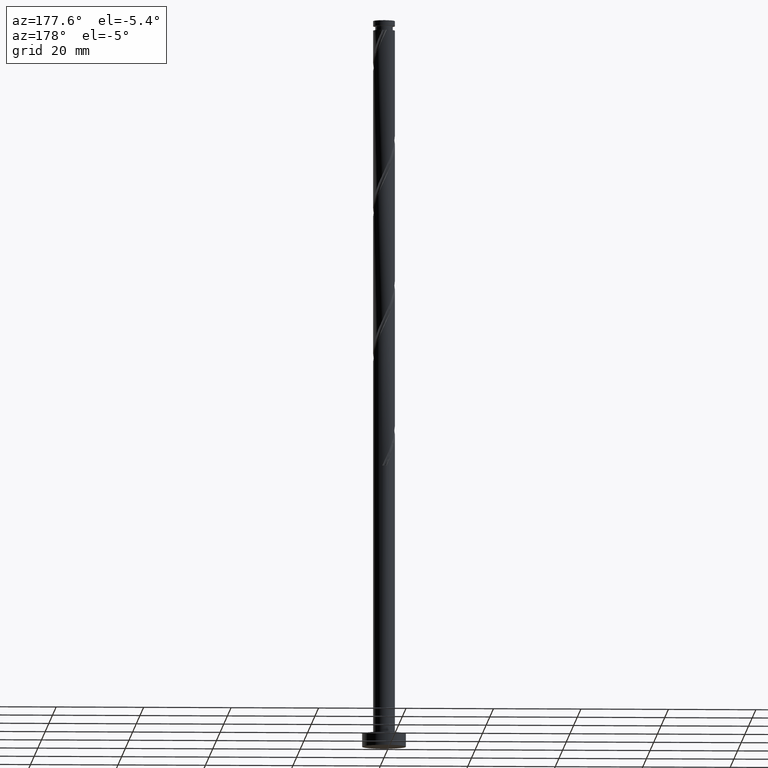
[diagram: clean part render]
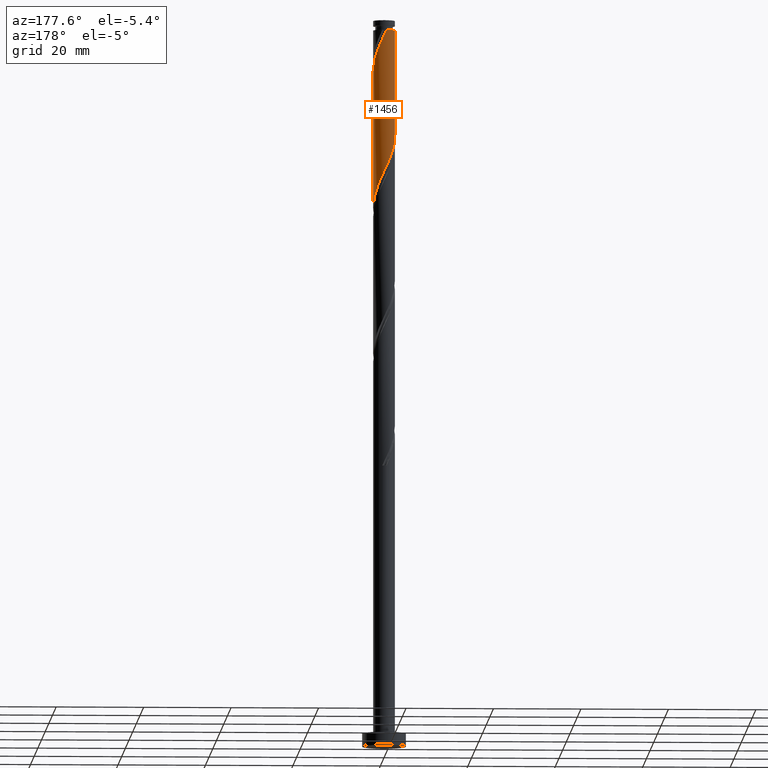
[diagram: same view with one face highlighted and labeled with its STEP entity id]
A machine part, auxiliary view. The second image highlights one B-rep face of the part: STEP entity #1456.
In plain terms, the highlighted cylindrical surface (edge-blend (fillet) strip) has radius 2.5 mm, axis along (-0, -0, -1).
Its self-contained STEP definition (entity closure, byte-faithful):
#79 = CARTESIAN_POINT ( 'NONE',  ( 1.380630431920286894, 2.084192795893800465, 160.1642888963396842 ) ) ;
#140 = VECTOR ( 'NONE', #1259, 1000.000000000000000 ) ;
#162 = CARTESIAN_POINT ( 'NONE',  ( 0.1749450994641901791, 2.515496290581584304, 131.6920666741175978 ) ) ;
#172 = FACE_OUTER_BOUND ( 'NONE', #1426, .T. ) ;
#180 = CARTESIAN_POINT ( 'NONE',  ( 2.500000000000000000, 3.061616997868383141E-16, 166.5200000000000102 ) ) ;
#183 = CARTESIAN_POINT ( 'NONE',  ( 0.000000000000000000, 0.000000000000000000, 164.3309555630064551 ) ) ;
#184 = CARTESIAN_POINT ( 'NONE',  ( 1.902429351286329062, 1.655019618953360361, 127.5254000074509406 ) ) ;
#195 = CARTESIAN_POINT ( 'NONE',  ( 2.475061956595790758, 0.4820743581320861004, 124.7476222296731407 ) ) ;
#239 = CARTESIAN_POINT ( 'NONE',  ( -0.4974937185533284123, 2.450000000000002398, 164.3309555630064835 ) ) ;
#248 = ORIENTED_EDGE ( 'NONE', *, *, #1034, .F. ) ;
#296 = CARTESIAN_POINT ( 'NONE',  ( -2.500000000000001776, 0.2512594538147936984, 139.8610958490272651 ) ) ;
#299 = DIRECTION ( 'NONE',  ( -1.000000000000000000, 0.000000000000000000, 0.000000000000000000 ) ) ;
#308 = CARTESIAN_POINT ( 'NONE',  ( 0.000000000000000000, 0.000000000000000000, 166.5200000000000102 ) ) ;
#314 = CARTESIAN_POINT ( 'NONE',  ( 1.655842198490352635, 1.873015379995218499, 128.2198444518953124 ) ) ;
#316 = LINE ( 'NONE', #837, #140 ) ;
#328 = CARTESIAN_POINT ( 'NONE',  ( -0.4974937185533284678, 2.450000000000002398, 164.3309555630064835 ) ) ;
#357 = CARTESIAN_POINT ( 'NONE',  ( 2.384503709418420048, 0.8200423376424300637, 156.6920666741176262 ) ) ;
#421 = AXIS2_PLACEMENT_3D ( 'NONE', #183, #438, #1265 ) ;
#429 = EDGE_CURVE ( 'NONE', #461, #446, #1454, .T. ) ;
#431 = ORIENTED_EDGE ( 'NONE', *, *, #880, .T. ) ;
#438 = DIRECTION ( 'NONE',  ( -0.000000000000000000, -0.000000000000000000, -1.000000000000000000 ) ) ;
#439 = CARTESIAN_POINT ( 'NONE',  ( 2.500000000000000000, 0.07685487914418152877, 123.8910192395780143 ) ) ;
#446 = VERTEX_POINT ( 'NONE', #1127 ) ;
#461 = VERTEX_POINT ( 'NONE', #1671 ) ;
#464 = CARTESIAN_POINT ( 'NONE',  ( 1.409255045694377539, 2.091011141037078858, 128.9142888963398264 ) ) ;
#515 = CARTESIAN_POINT ( 'NONE',  ( 1.655019618953364802, 1.902429351286329728, 159.4698444518953693 ) ) ;
#546 = CARTESIAN_POINT ( 'NONE',  ( -0.4820743581320875992, 2.475061956595790758, 133.0809555630064835 ) ) ;
#554 = CARTESIAN_POINT ( 'NONE',  ( -1.655019618953361027, 1.902429351286328618, 135.8587333407842550 ) ) ;
#590 = AXIS2_PLACEMENT_3D ( 'NONE', #308, #1140, #299 ) ;
#685 = CARTESIAN_POINT ( 'NONE',  ( -1.106241244887207653, 2.265956240501270091, 134.4698444518953693 ) ) ;
#720 = CYLINDRICAL_SURFACE ( 'NONE', #590, 2.500000000000000000 ) ;
#811 = CARTESIAN_POINT ( 'NONE',  ( -2.237757425227747010, 1.114648691668402858, 137.9420666741175694 ) ) ;
#834 = CARTESIAN_POINT ( 'NONE',  ( -1.873015379995219387, 1.655842198490352191, 136.5531777852286837 ) ) ;
#837 = CARTESIAN_POINT ( 'NONE',  ( -2.500000000000000000, 0.000000000000000000, 166.5200000000000102 ) ) ;
#865 = CARTESIAN_POINT ( 'NONE',  ( 2.370509098548529980, 0.7941578015096459886, 125.4420666741175552 ) ) ;
#870 = ORIENTED_EDGE ( 'NONE', *, *, #1513, .T. ) ;
#880 = EDGE_CURVE ( 'NONE', #1003, #1716, #1218, .T. ) ;
#895 = CARTESIAN_POINT ( 'NONE',  ( 2.450000000000003286, 0.4974937185533098716, 155.9976222296730839 ) ) ;
#905 = CARTESIAN_POINT ( 'NONE',  ( 0.7941578015096506515, 2.370509098548531757, 161.5531777852286552 ) ) ;
#940 = CARTESIAN_POINT ( 'NONE',  ( -2.384503709418414719, 0.8200423376424302857, 138.6365111185620265 ) ) ;
#955 = CARTESIAN_POINT ( 'NONE',  ( 0.8200423376424322841, 2.384503709418414275, 130.3031777852286837 ) ) ;
#968 =( BOUNDED_CURVE ( )  B_SPLINE_CURVE ( 2, ( #1023, #1181, #895, #357, #1448, #1304, #1168, #515, #79, #1571, #905, #1717, #1708, #1460, #239 ),
 .UNSPECIFIED., .F., .T. ) 
 B_SPLINE_CURVE_WITH_KNOTS ( ( 3, 2, 2, 2, 2, 2, 2, 3 ),
 ( 0.6795317669814460171, 0.6875000000000000000, 0.6979166666666667407, 0.7083333333333332593, 0.7187500000000000000, 0.7291666666666667407, 0.7395833333333332593, 0.7500000000000000000 ),
 .UNSPECIFIED. ) 
 CURVE ( )  GEOMETRIC_REPRESENTATION_ITEM ( )  RATIONAL_B_SPLINE_CURVE ( ( 0.9062941362546490520, 0.9031415850403528012, 0.9090909090909286006, 0.9013135103398467463, 0.9090909090909286006, 0.9013135103398467463, 0.9090909090909286006, 0.9013135103398467463, 0.9090909090909286006, 0.9013135103398467463, 0.9090909090909286006, 0.9013135103398467463, 0.9090909090909286006, 0.9013135103398467463, 0.9090909090909286006 ) ) 
 REPRESENTATION_ITEM ( '' )  );
#1003 = VERTEX_POINT ( 'NONE', #1046 ) ;
#1023 = CARTESIAN_POINT ( 'NONE',  ( 2.500000000000003553, -1.420609522143901394E-15, 154.9340555744630592 ) ) ;
#1034 = EDGE_CURVE ( 'NONE', #1610, #1716, #968, .T. ) ;
#1046 = CARTESIAN_POINT ( 'NONE',  ( -2.499999999999992006, 0.000000000000000000, 164.3309555630064551 ) ) ;
#1056 = ORIENTED_EDGE ( 'NONE', *, *, #1378, .F. ) ;
#1088 = CARTESIAN_POINT ( 'NONE',  ( -0.1535646293339486268, 2.495279123588685977, 132.3865111185619980 ) ) ;
#1113 = CARTESIAN_POINT ( 'NONE',  ( 2.500000000000003553, -1.420609522143901394E-15, 154.9340555744630592 ) ) ;
#1122 = LINE ( 'NONE', #180, #1508 ) ;
#1127 = CARTESIAN_POINT ( 'NONE',  ( 2.499999999999999556, -2.878603505396873985E-15, 123.7278555515498510 ) ) ;
#1140 = DIRECTION ( 'NONE',  ( -0.000000000000000000, -0.000000000000000000, -1.000000000000000000 ) ) ;
#1150 = CARTESIAN_POINT ( 'NONE',  ( 2.499999999999999556, -2.878603505396873985E-15, 123.7278555515498510 ) ) ;
#1168 = CARTESIAN_POINT ( 'NONE',  ( 1.873015379995223606, 1.655842198490352857, 158.7754000074508269 ) ) ;
#1181 = CARTESIAN_POINT ( 'NONE',  ( 2.500000000000005773, 0.2512594538147942536, 155.4674819436523023 ) ) ;
#1218 = CIRCLE ( 'NONE', #421, 2.499999999999992006 ) ;
#1246 = CARTESIAN_POINT ( 'NONE',  ( 0.4974937185533105932, 2.449999999999999289, 130.9976222296731123 ) ) ;
#1259 = DIRECTION ( 'NONE',  ( -0.000000000000000000, -0.000000000000000000, -1.000000000000000000 ) ) ;
#1265 = DIRECTION ( 'NONE',  ( -1.000000000000000000, 0.000000000000000000, 0.000000000000000000 ) ) ;
#1270 = DIRECTION ( 'NONE',  ( -0.000000000000000000, -0.000000000000000000, -1.000000000000000000 ) ) ;
#1282 = ORIENTED_EDGE ( 'NONE', *, *, #429, .F. ) ;
#1292 = CARTESIAN_POINT ( 'NONE',  ( 2.084192795893798689, 1.380630431920283785, 126.8309555630064409 ) ) ;
#1304 = CARTESIAN_POINT ( 'NONE',  ( 2.091011141037083298, 1.409255045694376873, 158.0809555630064835 ) ) ;
#1366 = CARTESIAN_POINT ( 'NONE',  ( -2.091011141037078858, 1.409255045694376873, 137.2476222296731692 ) ) ;
#1378 = EDGE_CURVE ( 'NONE', #1003, #461, #316, .T. ) ;
#1380 = CARTESIAN_POINT ( 'NONE',  ( -0.7941578015096475429, 2.370509098548529536, 133.7754000074509122 ) ) ;
#1397 = CARTESIAN_POINT ( 'NONE',  ( 2.265956240501270536, 1.106241244887206321, 126.1365111185620265 ) ) ;
#1426 = EDGE_LOOP ( 'NONE', ( #248, #870, #1282, #1056, #431 ) ) ;
#1448 = CARTESIAN_POINT ( 'NONE',  ( 2.237757425227751007, 1.114648691668402858, 157.3865111185619696 ) ) ;
#1454 =( BOUNDED_CURVE ( )  B_SPLINE_CURVE ( 2, ( #1518, #296, #1623, #940, #811, #1366, #834, #554, #1503, #685, #1380, #546, #1088, #162, #1246, #955, #1685, #464, #314, #184, #1292, #1397, #865, #195, #1692, #439, #1150 ),
 .UNSPECIFIED., .F., .T. ) 
 B_SPLINE_CURVE_WITH_KNOTS ( ( 3, 2, 2, 2, 2, 2, 2, 2, 2, 2, 2, 2, 2, 3 ),
 ( 0.4295317669814459616, 0.4375000000000000000, 0.4479166666666666852, 0.4583333333333333148, 0.4687500000000000000, 0.4791666666666666852, 0.4895833333333333148, 0.5000000000000000000, 0.5104166666666666297, 0.5208333333333333703, 0.5312500000000000000, 0.5416666666666666297, 0.5520833333333333703, 0.5545317669814463502 ),
 .UNSPECIFIED. ) 
 CURVE ( )  GEOMETRIC_REPRESENTATION_ITEM ( )  RATIONAL_B_SPLINE_CURVE ( ( 0.9062941362546425017, 0.9031415850403462509, 0.9090909090909219392, 0.9013135103398401959, 0.9090909090909219392, 0.9013135103398401959, 0.9090909090909219392, 0.9013135103398401959, 0.9090909090909219392, 0.9013135103398401959, 0.9090909090909219392, 0.9013135103398401959, 0.9090909090909219392, 0.9013135103398401959, 0.9090909090909219392, 0.9013135103398401959, 0.9090909090909219392, 0.9013135103398401959, 0.9090909090909219392, 0.9013135103398401959, 0.9090909090909219392, 0.9013135103398401959, 0.9090909090909219392, 0.9013135103398401959, 0.9090909090909219392, 0.9072628343904155512, 0.9062941362546421686 ) ) 
 REPRESENTATION_ITEM ( '' )  );
#1456 = ADVANCED_FACE ( 'NONE', ( #172 ), #720, .T. ) ;
#1460 = CARTESIAN_POINT ( 'NONE',  ( -0.1749450994641874590, 2.515496290581588745, 163.6365111185620833 ) ) ;
#1503 = CARTESIAN_POINT ( 'NONE',  ( -1.380630431920284007, 2.084192795893798689, 135.1642888963397411 ) ) ;
#1508 = VECTOR ( 'NONE', #1270, 1000.000000000000000 ) ;
#1513 = EDGE_CURVE ( 'NONE', #1610, #446, #1122, .T. ) ;
#1518 = CARTESIAN_POINT ( 'NONE',  ( -2.499999999999998224, -5.570284705248495331E-15, 140.3945222182165082 ) ) ;
#1571 = CARTESIAN_POINT ( 'NONE',  ( 1.106241244887210762, 2.265956240501272312, 160.8587333407842266 ) ) ;
#1610 = VERTEX_POINT ( 'NONE', #1113 ) ;
#1623 = CARTESIAN_POINT ( 'NONE',  ( -2.449999999999999289, 0.4974937185533100381, 139.3309555630064551 ) ) ;
#1671 = CARTESIAN_POINT ( 'NONE',  ( -2.499999999999998668, -5.570284705248495331E-15, 140.3945222182165082 ) ) ;
#1685 = CARTESIAN_POINT ( 'NONE',  ( 1.114648691668404634, 2.237757425227746122, 129.6087333407841982 ) ) ;
#1692 = CARTESIAN_POINT ( 'NONE',  ( 2.495279123588685977, 0.1535646293339474888, 124.0531777852286694 ) ) ;
#1708 = CARTESIAN_POINT ( 'NONE',  ( 0.1535646293339514856, 2.495279123588689973, 162.9420666741175410 ) ) ;
#1716 = VERTEX_POINT ( 'NONE', #328 ) ;
#1717 = CARTESIAN_POINT ( 'NONE',  ( 0.4820743581320903748, 2.475061956595794310, 162.2476222296730839 ) ) ;